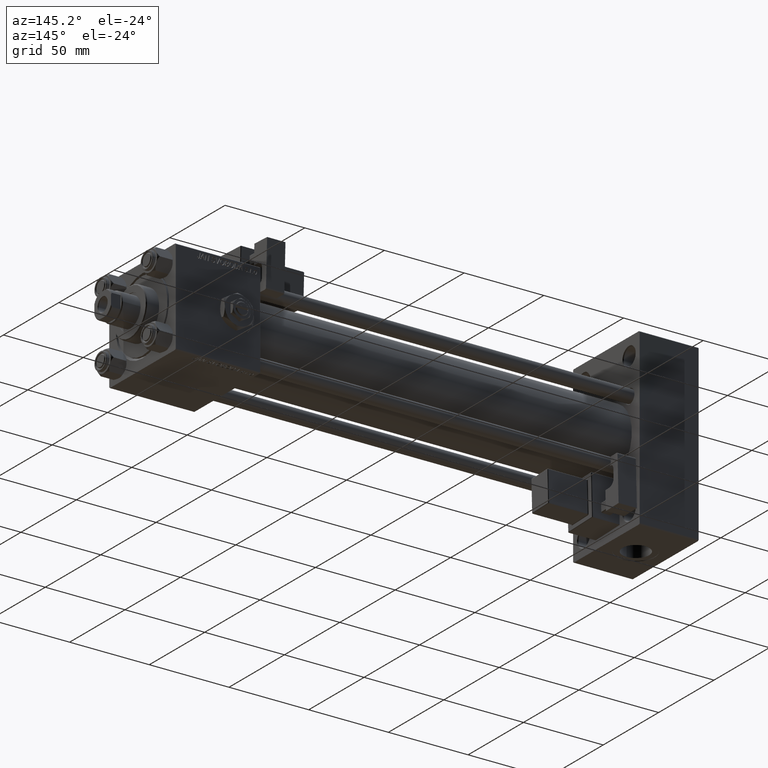
[diagram: clean part render]
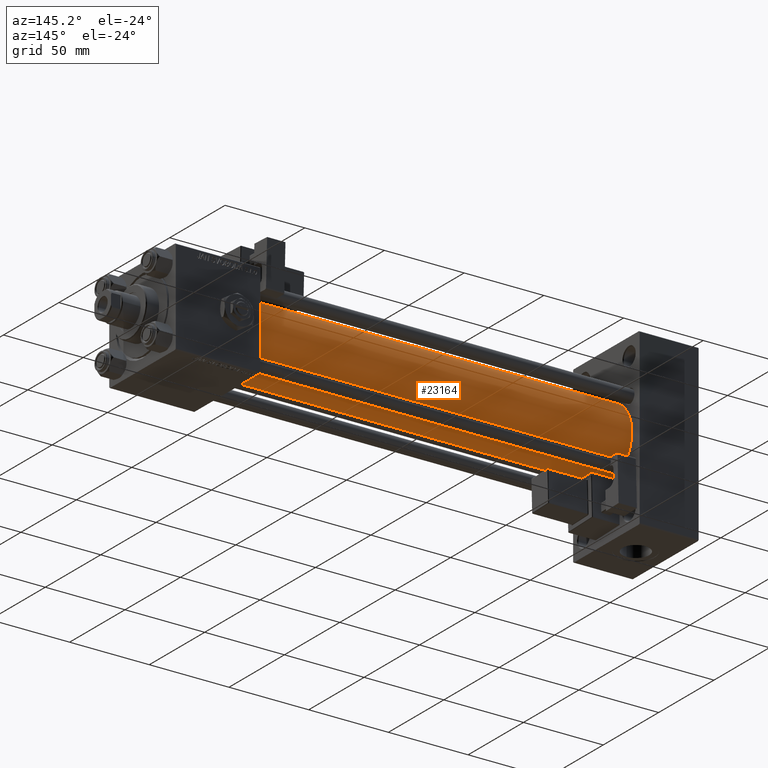
[diagram: same view with one face highlighted and labeled with its STEP entity id]
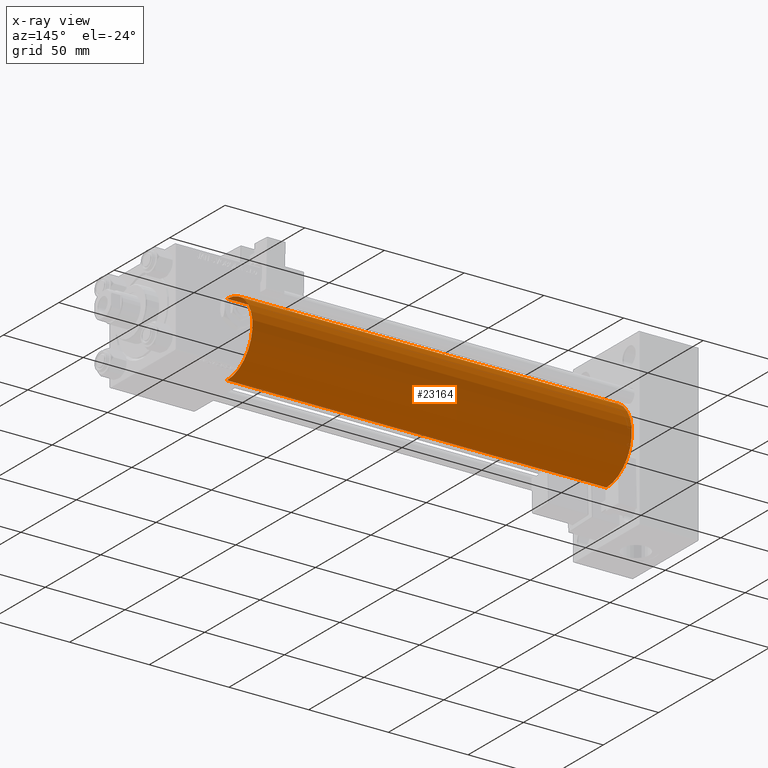
[diagram: x-ray of the same camera — body ghosted, the highlighted face saturated]
A machine part, auxiliary view. The second image highlights one B-rep face of the part: STEP entity #23164.
The next image is the same camera in x-ray: the body ghosted, the highlighted face saturated — about 0% of this face is hidden behind the body in this view.
In plain terms, the highlighted cylindrical surface (partial cylindrical patch) has radius 23 mm, axis along (-1, -0, -0).
Its self-contained STEP definition (entity closure, byte-faithful):
#743 = AXIS2_PLACEMENT_3D ( 'NONE', #14486, #40176, #10919 ) ;
#2602 = CARTESIAN_POINT ( 'NONE',  ( 37.00000000000000711, -2.602085213965210642E-15, 0.000000000000000000 ) ) ;
#2717 = ORIENTED_EDGE ( 'NONE', *, *, #46518, .F. ) ;
#3303 = CARTESIAN_POINT ( 'NONE',  ( 274.9999999999999432, -2.602085213965210642E-15, 0.000000000000000000 ) ) ;
#3366 = CIRCLE ( 'NONE', #743, 23.00000000000000000 ) ;
#7931 = ORIENTED_EDGE ( 'NONE', *, *, #29581, .T. ) ;
#8397 = LINE ( 'NONE', #13028, #40205 ) ;
#10919 = DIRECTION ( 'NONE',  ( 0.000000000000000000, 0.000000000000000000, -1.000000000000000000 ) ) ;
#12298 = DIRECTION ( 'NONE',  ( 0.000000000000000000, 0.000000000000000000, 1.000000000000000000 ) ) ;
#13028 = CARTESIAN_POINT ( 'NONE',  ( 274.9999999999999432, -2.602085213965210642E-15, 23.00000000000000000 ) ) ;
#13948 = CIRCLE ( 'NONE', #44484, 23.00000000000000000 ) ;
#14486 = CARTESIAN_POINT ( 'NONE',  ( 274.9999999999999432, -2.602085213965210642E-15, 0.000000000000000000 ) ) ;
#15459 = CARTESIAN_POINT ( 'NONE',  ( 37.00000000000000711, -2.602085213965210642E-15, 23.00000000000000000 ) ) ;
#19246 = EDGE_CURVE ( 'NONE', #29569, #34016, #3366, .T. ) ;
#19284 = DIRECTION ( 'NONE',  ( 1.000000000000000000, -0.000000000000000000, 0.000000000000000000 ) ) ;
#19371 = CARTESIAN_POINT ( 'NONE',  ( 37.00000000000000711, 2.146024240737016609E-16, -23.00000000000000000 ) ) ;
#21386 = CARTESIAN_POINT ( 'NONE',  ( 274.9999999999999432, 2.146024240737016609E-16, -23.00000000000000000 ) ) ;
#23164 = ADVANCED_FACE ( 'NONE', ( #33087 ), #44815, .T. ) ;
#23888 = ORIENTED_EDGE ( 'NONE', *, *, #19246, .F. ) ;
#24348 = AXIS2_PLACEMENT_3D ( 'NONE', #3303, #49698, #12298 ) ;
#25495 = LINE ( 'NONE', #21386, #53325 ) ;
#26865 = EDGE_CURVE ( 'NONE', #53403, #41590, #13948, .T. ) ;
#28559 = DIRECTION ( 'NONE',  ( 0.000000000000000000, 0.000000000000000000, 1.000000000000000000 ) ) ;
#29569 = VERTEX_POINT ( 'NONE', #33713 ) ;
#29581 = EDGE_CURVE ( 'NONE', #29569, #53403, #25495, .T. ) ;
#31210 = CARTESIAN_POINT ( 'NONE',  ( 274.9999999999999432, -2.602085213965210642E-15, 23.00000000000000000 ) ) ;
#33087 = FACE_OUTER_BOUND ( 'NONE', #53200, .T. ) ;
#33713 = CARTESIAN_POINT ( 'NONE',  ( 274.9999999999999432, 2.146024240737016609E-16, -23.00000000000000000 ) ) ;
#34016 = VERTEX_POINT ( 'NONE', #31210 ) ;
#40176 = DIRECTION ( 'NONE',  ( 1.000000000000000000, 0.000000000000000000, 0.000000000000000000 ) ) ;
#40205 = VECTOR ( 'NONE', #45553, 1000.000000000000000 ) ;
#41590 = VERTEX_POINT ( 'NONE', #15459 ) ;
#44484 = AXIS2_PLACEMENT_3D ( 'NONE', #2602, #19284, #28559 ) ;
#44815 = CYLINDRICAL_SURFACE ( 'NONE', #24348, 23.00000000000000000 ) ;
#45553 = DIRECTION ( 'NONE',  ( -1.000000000000000000, -0.000000000000000000, -0.000000000000000000 ) ) ;
#46518 = EDGE_CURVE ( 'NONE', #34016, #41590, #8397, .T. ) ;
#46759 = DIRECTION ( 'NONE',  ( -1.000000000000000000, -0.000000000000000000, -0.000000000000000000 ) ) ;
#49698 = DIRECTION ( 'NONE',  ( -1.000000000000000000, -0.000000000000000000, -0.000000000000000000 ) ) ;
#52120 = ORIENTED_EDGE ( 'NONE', *, *, #26865, .T. ) ;
#53200 = EDGE_LOOP ( 'NONE', ( #23888, #7931, #52120, #2717 ) ) ;
#53325 = VECTOR ( 'NONE', #46759, 1000.000000000000000 ) ;
#53403 = VERTEX_POINT ( 'NONE', #19371 ) ;